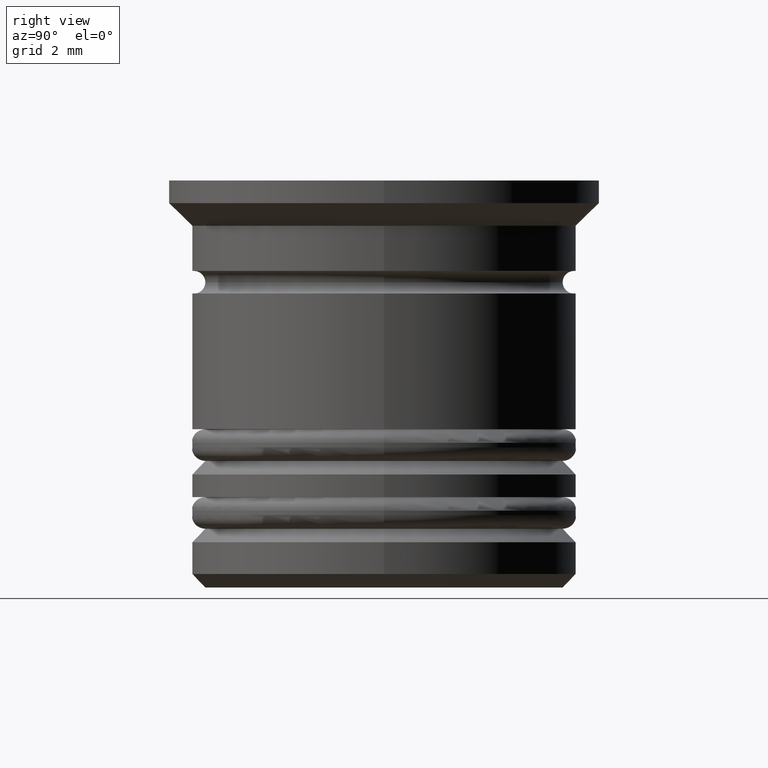
[diagram: clean part render]
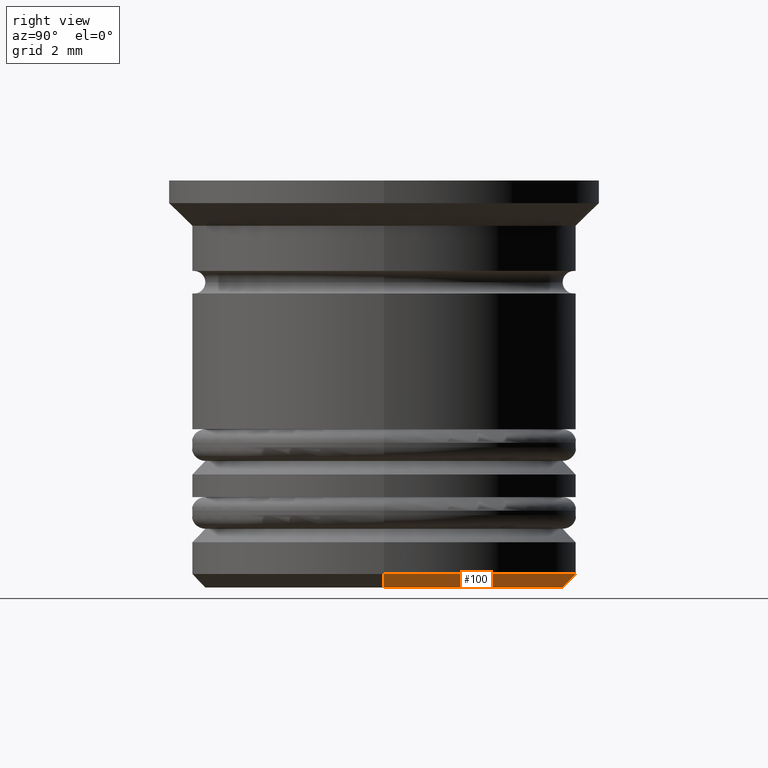
[diagram: same view with one face highlighted and labeled with its STEP entity id]
A machine part, right view. The second image highlights one B-rep face of the part: STEP entity #100.
In plain terms, the highlighted conical surface has half-angle 45 deg.
Its self-contained STEP definition (entity closure, byte-faithful):
#100 = ADVANCED_FACE ( 'NONE', ( #170 ), #1361, .T. ) ;
#102 = CARTESIAN_POINT ( 'NONE',  ( 0.000000000000000000, 0.000000000000000000, -8.999999999999998224 ) ) ;
#146 = CARTESIAN_POINT ( 'NONE',  ( 0.000000000000000000, 0.000000000000000000, -8.699999999999993960 ) ) ;
#170 = FACE_OUTER_BOUND ( 'NONE', #361, .T. ) ;
#173 = VERTEX_POINT ( 'NONE', #227 ) ;
#175 = ORIENTED_EDGE ( 'NONE', *, *, #295, .T. ) ;
#225 = EDGE_CURVE ( 'NONE', #1442, #1542, #1927, .T. ) ;
#227 = CARTESIAN_POINT ( 'NONE',  ( -4.250000000000000000, 5.204748896376250699E-16, -8.699999999999993960 ) ) ;
#295 = EDGE_CURVE ( 'NONE', #1442, #173, #1199, .T. ) ;
#322 = CIRCLE ( 'NONE', #1515, 4.250000000000000000 ) ;
#323 = EDGE_CURVE ( 'NONE', #1186, #173, #322, .T. ) ;
#341 = ORIENTED_EDGE ( 'NONE', *, *, #225, .F. ) ;
#361 = EDGE_LOOP ( 'NONE', ( #341, #175, #849, #1367 ) ) ;
#397 = DIRECTION ( 'NONE',  ( -0.000000000000000000, -0.000000000000000000, 1.000000000000000000 ) ) ;
#417 = DIRECTION ( 'NONE',  ( 0.000000000000000000, 0.000000000000000000, -1.000000000000000000 ) ) ;
#463 = CARTESIAN_POINT ( 'NONE',  ( -3.949999999999996181, 5.021051876504146399E-16, -8.999999999999998224 ) ) ;
#547 = DIRECTION ( 'NONE',  ( 0.7071067811865486830, 0.000000000000000000, 0.7071067811865464625 ) ) ;
#574 = AXIS2_PLACEMENT_3D ( 'NONE', #102, #417, #1223 ) ;
#582 = DIRECTION ( 'NONE',  ( -0.7071067811865486830, 8.659560562354947649E-17, 0.7071067811865464625 ) ) ;
#674 = VECTOR ( 'NONE', #582, 999.9999999999998863 ) ;
#710 = LINE ( 'NONE', #1800, #1812 ) ;
#716 = CARTESIAN_POINT ( 'NONE',  ( 3.949999999999996181, 0.000000000000000000, -8.999999999999998224 ) ) ;
#743 = EDGE_CURVE ( 'NONE', #1542, #1186, #710, .T. ) ;
#778 = DIRECTION ( 'NONE',  ( -0.000000000000000000, -0.000000000000000000, 1.000000000000000000 ) ) ;
#849 = ORIENTED_EDGE ( 'NONE', *, *, #323, .F. ) ;
#918 = CARTESIAN_POINT ( 'NONE',  ( 0.000000000000000000, 0.000000000000000000, -8.699999999999993960 ) ) ;
#1186 = VERTEX_POINT ( 'NONE', #1428 ) ;
#1199 = LINE ( 'NONE', #1662, #674 ) ;
#1223 = DIRECTION ( 'NONE',  ( -1.000000000000000000, 0.000000000000000000, 0.000000000000000000 ) ) ;
#1277 = DIRECTION ( 'NONE',  ( 1.000000000000000000, 0.000000000000000000, 0.000000000000000000 ) ) ;
#1334 = AXIS2_PLACEMENT_3D ( 'NONE', #146, #778, #1277 ) ;
#1361 = CONICAL_SURFACE ( 'NONE', #1334, 4.250000000000000000, 0.7853981633974498333 ) ;
#1367 = ORIENTED_EDGE ( 'NONE', *, *, #743, .F. ) ;
#1428 = CARTESIAN_POINT ( 'NONE',  ( 4.250000000000000000, 0.000000000000000000, -8.699999999999993960 ) ) ;
#1442 = VERTEX_POINT ( 'NONE', #463 ) ;
#1515 = AXIS2_PLACEMENT_3D ( 'NONE', #918, #397, #1627 ) ;
#1542 = VERTEX_POINT ( 'NONE', #716 ) ;
#1627 = DIRECTION ( 'NONE',  ( -1.000000000000000000, 0.000000000000000000, 0.000000000000000000 ) ) ;
#1662 = CARTESIAN_POINT ( 'NONE',  ( -4.250000000000000000, 5.204748896376250699E-16, -8.699999999999993960 ) ) ;
#1800 = CARTESIAN_POINT ( 'NONE',  ( 4.250000000000000000, 0.000000000000000000, -8.699999999999993960 ) ) ;
#1812 = VECTOR ( 'NONE', #547, 999.9999999999998863 ) ;
#1927 = CIRCLE ( 'NONE', #574, 3.949999999999996181 ) ;